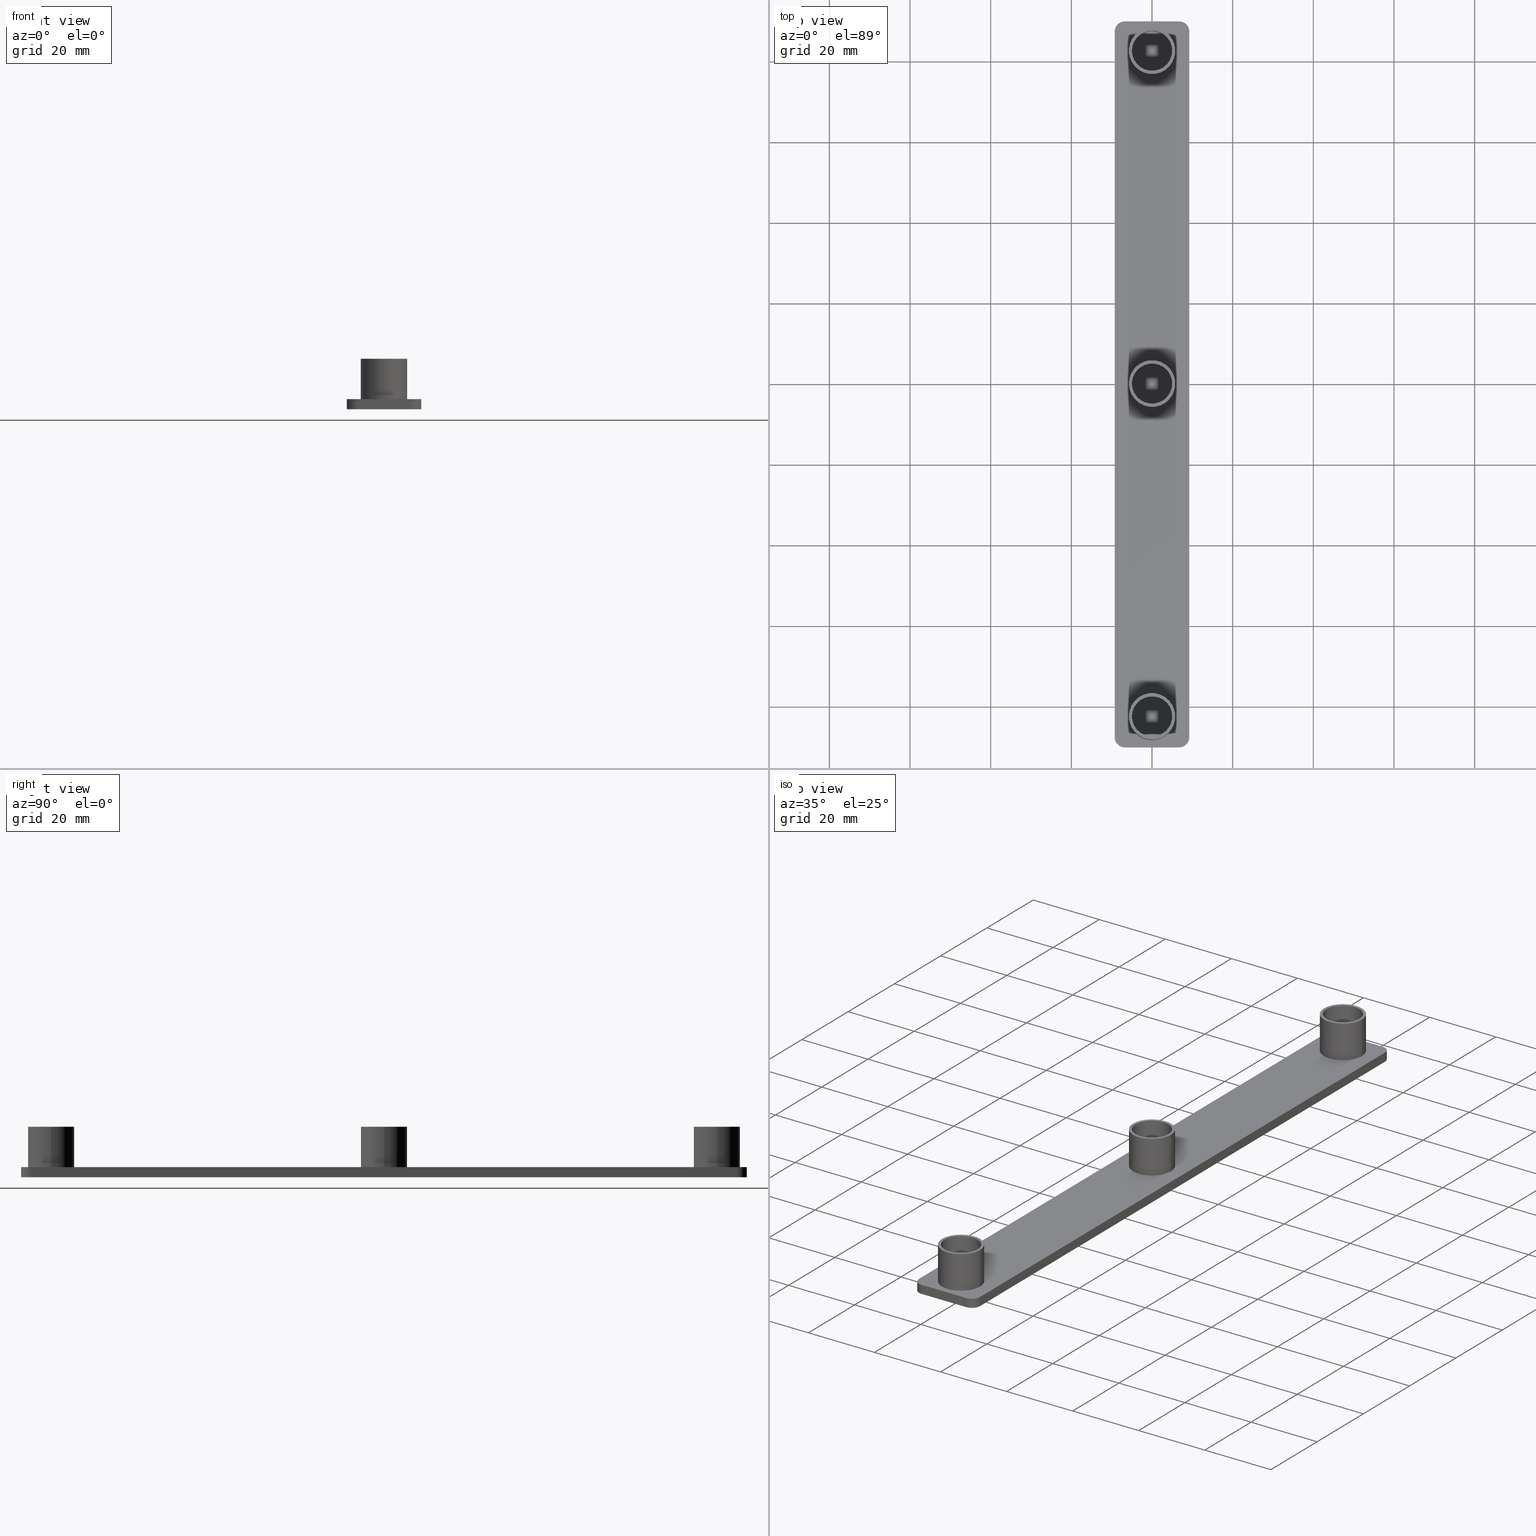
[diagram: canonical four-view strip — front | top / right | iso, engineering-drawing reading convention]
A machine part, canonical four-view strip (front | top / right | iso — engineering-drawing reading convention). The complete STEP part file that produces these views, byte-faithful:
ISO-10303-21;
HEADER;
/****************************************************************
 * Generated by software with PDE/Lib inside                    *
 * PDElib Version v4.4, created Mon 02/23/2004                  *
 * International Technegroup Inc. (www.iti-oh.com)              *
 ****************************************************************/
FILE_DESCRIPTION(('STEP AP203'),'2;1');
FILE_NAME('18.069.00.stp','2011-03-07T08:45:51',(''),(''),'2009.3.110','THINKDESIGN','');
FILE_SCHEMA(('CONFIG_CONTROL_DESIGN'));
ENDSEC;
DATA;
#2=CARTESIAN_POINT('',(9.249954999963393,-87.499977499649503,0.0));
#3=DIRECTION('',(-1.0,0.0,0.0));
#4=DIRECTION('',(0.0,1.0,0.0));
#5=AXIS2_PLACEMENT_3D('',#2,#3,#4);
#6=PLANE('',#5);
#7=CARTESIAN_POINT('',(9.249954999963393,-87.499977499649503,0.0));
#8=VERTEX_POINT('',#7);
#9=CARTESIAN_POINT('',(9.249954999963393,-87.499977499649503,-2.500000000000000));
#10=VERTEX_POINT('',#9);
#11=CARTESIAN_POINT('',(9.249954999963393,-87.499977499649503,0.0));
#12=DIRECTION('',(0.0,0.0,-1.0));
#13=VECTOR('',#12,2.500000000000000);
#14=LINE('',#11,#13);
#15=EDGE_CURVE('',#8,#10,#14,.T.);
#16=ORIENTED_EDGE('',*,*,#15,.T.);
#17=CARTESIAN_POINT('',(9.249954999962938,87.500022499650186,-2.500000000000000));
#18=VERTEX_POINT('',#17);
#19=CARTESIAN_POINT('',(9.249954999963393,-87.499977499649503,-2.500000000000000));
#20=DIRECTION('',(0.0,1.0,0.0));
#21=VECTOR('',#20,174.999999999300030);
#22=LINE('',#19,#21);
#23=EDGE_CURVE('',#10,#18,#22,.T.);
#24=ORIENTED_EDGE('',*,*,#23,.T.);
#25=CARTESIAN_POINT('',(9.249954999962938,87.500022499650186,0.0));
#26=VERTEX_POINT('',#25);
#27=CARTESIAN_POINT('',(9.249954999962938,87.500022499650186,0.0));
#28=DIRECTION('',(0.0,0.0,-1.0));
#29=VECTOR('',#28,2.500000000000000);
#30=LINE('',#27,#29);
#31=EDGE_CURVE('',#26,#18,#30,.T.);
#32=ORIENTED_EDGE('',*,*,#31,.F.);
#33=CARTESIAN_POINT('',(9.249954999963393,-87.499977499649503,0.0));
#34=DIRECTION('',(0.0,1.0,0.0));
#35=VECTOR('',#34,174.999999999300030);
#36=LINE('',#33,#35);
#37=EDGE_CURVE('',#8,#26,#36,.T.);
#38=ORIENTED_EDGE('',*,*,#37,.F.);
#39=EDGE_LOOP('',(#16,#24,#32,#38));
#40=FACE_OUTER_BOUND('',#39,.T.);
#41=ADVANCED_FACE('',(#40),#6,.F.);
#42=CARTESIAN_POINT('',(6.749954999972943,87.500022499650186,0.0));
#43=DIRECTION('',(0.0,0.0,1.0));
#44=DIRECTION('',(1.0,0.0,0.0));
#45=AXIS2_PLACEMENT_3D('',#42,#43,#44);
#46=CYLINDRICAL_SURFACE('',#45,2.499999999990000);
#47=ORIENTED_EDGE('',*,*,#31,.T.);
#48=CARTESIAN_POINT('',(6.749954999972943,90.000022499640181,-2.500000000000000));
#49=VERTEX_POINT('',#48);
#50=CARTESIAN_POINT('',(6.749954999972943,87.500022499650186,-2.500000000000000));
#51=DIRECTION('',(0.0,0.0,1.0));
#52=DIRECTION('',(1.0,0.0,0.0));
#53=AXIS2_PLACEMENT_3D('',#50,#51,#52);
#54=CIRCLE('',#53,2.499999999990000);
#55=EDGE_CURVE('',#18,#49,#54,.T.);
#56=ORIENTED_EDGE('',*,*,#55,.T.);
#57=CARTESIAN_POINT('',(6.749954999972943,90.000022499640181,0.0));
#58=VERTEX_POINT('',#57);
#59=CARTESIAN_POINT('',(6.749954999972943,90.000022499640181,0.0));
#60=DIRECTION('',(0.0,0.0,-1.0));
#61=VECTOR('',#60,2.500000000000000);
#62=LINE('',#59,#61);
#63=EDGE_CURVE('',#58,#49,#62,.T.);
#64=ORIENTED_EDGE('',*,*,#63,.F.);
#65=CARTESIAN_POINT('',(6.749954999972943,87.500022499650186,0.0));
#66=DIRECTION('',(0.0,0.0,1.0));
#67=DIRECTION('',(1.0,0.0,0.0));
#68=AXIS2_PLACEMENT_3D('',#65,#66,#67);
#69=CIRCLE('',#68,2.499999999990000);
#70=EDGE_CURVE('',#26,#58,#69,.T.);
#71=ORIENTED_EDGE('',*,*,#70,.F.);
#72=EDGE_LOOP('',(#47,#56,#64,#71));
#73=FACE_OUTER_BOUND('',#72,.T.);
#74=ADVANCED_FACE('',(#73),#46,.T.);
#75=CARTESIAN_POINT('',(6.749954999972943,90.000022499640181,0.0));
#76=DIRECTION('',(0.0,-1.0,0.0));
#77=DIRECTION('',(-1.0,0.0,0.0));
#78=AXIS2_PLACEMENT_3D('',#75,#76,#77);
#79=PLANE('',#78);
#80=ORIENTED_EDGE('',*,*,#63,.T.);
#81=CARTESIAN_POINT('',(-6.750044999972943,90.000022499640181,-2.500000000000000));
#82=VERTEX_POINT('',#81);
#83=CARTESIAN_POINT('',(6.749954999973063,90.000022499640252,-2.500000000000000));
#84=DIRECTION('',(-1.0,0.0,0.0));
#85=VECTOR('',#84,13.499999999946006);
#86=LINE('',#83,#85);
#87=EDGE_CURVE('',#49,#82,#86,.T.);
#88=ORIENTED_EDGE('',*,*,#87,.T.);
#89=CARTESIAN_POINT('',(-6.750044999972943,90.000022499640181,0.0));
#90=VERTEX_POINT('',#89);
#91=CARTESIAN_POINT('',(-6.750044999972943,90.000022499640181,0.0));
#92=DIRECTION('',(0.0,0.0,-1.0));
#93=VECTOR('',#92,2.500000000000000);
#94=LINE('',#91,#93);
#95=EDGE_CURVE('',#90,#82,#94,.T.);
#96=ORIENTED_EDGE('',*,*,#95,.F.);
#97=CARTESIAN_POINT('',(6.749954999973063,90.000022499640252,0.0));
#98=DIRECTION('',(-1.0,0.0,0.0));
#99=VECTOR('',#98,13.499999999946006);
#100=LINE('',#97,#99);
#101=EDGE_CURVE('',#58,#90,#100,.T.);
#102=ORIENTED_EDGE('',*,*,#101,.F.);
#103=EDGE_LOOP('',(#80,#88,#96,#102));
#104=FACE_OUTER_BOUND('',#103,.T.);
#105=ADVANCED_FACE('',(#104),#79,.F.);
#106=CARTESIAN_POINT('',(-6.750044999972943,87.500022499650186,0.0));
#107=DIRECTION('',(0.0,0.0,1.0));
#108=DIRECTION('',(1.0,0.0,0.0));
#109=AXIS2_PLACEMENT_3D('',#106,#107,#108);
#110=CYLINDRICAL_SURFACE('',#109,2.499999999990000);
#111=ORIENTED_EDGE('',*,*,#95,.T.);
#112=CARTESIAN_POINT('',(-9.250044999962938,87.500022499650186,-2.500000000000000));
#113=VERTEX_POINT('',#112);
#114=CARTESIAN_POINT('',(-6.750044999972943,87.500022499650186,-2.500000000000000));
#115=DIRECTION('',(0.0,0.0,1.0));
#116=DIRECTION('',(1.0,0.0,0.0));
#117=AXIS2_PLACEMENT_3D('',#114,#115,#116);
#118=CIRCLE('',#117,2.499999999990000);
#119=EDGE_CURVE('',#82,#113,#118,.T.);
#120=ORIENTED_EDGE('',*,*,#119,.T.);
#121=CARTESIAN_POINT('',(-9.250044999962938,87.500022499650186,0.0));
#122=VERTEX_POINT('',#121);
#123=CARTESIAN_POINT('',(-9.250044999962938,87.500022499650186,0.0));
#124=DIRECTION('',(0.0,0.0,-1.0));
#125=VECTOR('',#124,2.500000000000000);
#126=LINE('',#123,#125);
#127=EDGE_CURVE('',#122,#113,#126,.T.);
#128=ORIENTED_EDGE('',*,*,#127,.F.);
#129=CARTESIAN_POINT('',(-6.750044999972943,87.500022499650186,0.0));
#130=DIRECTION('',(0.0,0.0,1.0));
#131=DIRECTION('',(1.0,0.0,0.0));
#132=AXIS2_PLACEMENT_3D('',#129,#130,#131);
#133=CIRCLE('',#132,2.499999999990000);
#134=EDGE_CURVE('',#90,#122,#133,.T.);
#135=ORIENTED_EDGE('',*,*,#134,.F.);
#136=EDGE_LOOP('',(#111,#120,#128,#135));
#137=FACE_OUTER_BOUND('',#136,.T.);
#138=ADVANCED_FACE('',(#137),#110,.T.);
#139=CARTESIAN_POINT('',(-9.250044999962938,87.500022499650186,0.0));
#140=DIRECTION('',(1.0,0.0,0.0));
#141=DIRECTION('',(0.0,-1.0,0.0));
#142=AXIS2_PLACEMENT_3D('',#139,#140,#141);
#143=PLANE('',#142);
#144=ORIENTED_EDGE('',*,*,#127,.T.);
#145=CARTESIAN_POINT('',(-9.250044999962938,-87.499977499649503,-2.500000000000000));
#146=VERTEX_POINT('',#145);
#147=CARTESIAN_POINT('',(-9.250044999962938,87.500022499650186,-2.500000000000000));
#148=DIRECTION('',(0.0,-1.0,0.0));
#149=VECTOR('',#148,174.999999999300000);
#150=LINE('',#147,#149);
#151=EDGE_CURVE('',#113,#146,#150,.T.);
#152=ORIENTED_EDGE('',*,*,#151,.T.);
#153=CARTESIAN_POINT('',(-9.250044999962938,-87.499977499649503,0.0));
#154=VERTEX_POINT('',#153);
#155=CARTESIAN_POINT('',(-9.250044999962938,-87.499977499649503,0.0));
#156=DIRECTION('',(0.0,0.0,-1.0));
#157=VECTOR('',#156,2.500000000000000);
#158=LINE('',#155,#157);
#159=EDGE_CURVE('',#154,#146,#158,.T.);
#160=ORIENTED_EDGE('',*,*,#159,.F.);
#161=CARTESIAN_POINT('',(-9.250044999962938,87.500022499650186,0.0));
#162=DIRECTION('',(0.0,-1.0,0.0));
#163=VECTOR('',#162,174.999999999300000);
#164=LINE('',#161,#163);
#165=EDGE_CURVE('',#122,#154,#164,.T.);
#166=ORIENTED_EDGE('',*,*,#165,.F.);
#167=EDGE_LOOP('',(#144,#152,#160,#166));
#168=FACE_OUTER_BOUND('',#167,.T.);
#169=ADVANCED_FACE('',(#168),#143,.F.);
#170=CARTESIAN_POINT('',(-6.750044999972943,-87.499977499649503,0.0));
#171=DIRECTION('',(0.0,0.0,1.0));
#172=DIRECTION('',(1.0,0.0,0.0));
#173=AXIS2_PLACEMENT_3D('',#170,#171,#172);
#174=CYLINDRICAL_SURFACE('',#173,2.499999999990000);
#175=ORIENTED_EDGE('',*,*,#159,.T.);
#176=CARTESIAN_POINT('',(-6.750044999972943,-89.999977499639499,-2.500000000000000));
#177=VERTEX_POINT('',#176);
#178=CARTESIAN_POINT('',(-6.750044999972943,-87.499977499649503,-2.500000000000000));
#179=DIRECTION('',(0.0,0.0,1.0));
#180=DIRECTION('',(1.0,0.0,0.0));
#181=AXIS2_PLACEMENT_3D('',#178,#179,#180);
#182=CIRCLE('',#181,2.499999999990000);
#183=EDGE_CURVE('',#146,#177,#182,.T.);
#184=ORIENTED_EDGE('',*,*,#183,.T.);
#185=CARTESIAN_POINT('',(-6.750044999972943,-89.999977499639499,0.0));
#186=VERTEX_POINT('',#185);
#187=CARTESIAN_POINT('',(-6.750044999972943,-89.999977499639499,0.0));
#188=DIRECTION('',(0.0,0.0,-1.0));
#189=VECTOR('',#188,2.500000000000000);
#190=LINE('',#187,#189);
#191=EDGE_CURVE('',#186,#177,#190,.T.);
#192=ORIENTED_EDGE('',*,*,#191,.F.);
#193=CARTESIAN_POINT('',(-6.750044999972943,-87.499977499649503,0.0));
#194=DIRECTION('',(0.0,0.0,1.0));
#195=DIRECTION('',(1.0,0.0,0.0));
#196=AXIS2_PLACEMENT_3D('',#193,#194,#195);
#197=CIRCLE('',#196,2.499999999990000);
#198=EDGE_CURVE('',#154,#186,#197,.T.);
#199=ORIENTED_EDGE('',*,*,#198,.F.);
#200=EDGE_LOOP('',(#175,#184,#192,#199));
#201=FACE_OUTER_BOUND('',#200,.T.);
#202=ADVANCED_FACE('',(#201),#174,.T.);
#203=CARTESIAN_POINT('',(-6.750044999972943,-89.999977499639499,0.0));
#204=DIRECTION('',(0.0,1.0,0.0));
#205=DIRECTION('',(1.0,0.0,0.0));
#206=AXIS2_PLACEMENT_3D('',#203,#204,#205);
#207=PLANE('',#206);
#208=ORIENTED_EDGE('',*,*,#191,.T.);
#209=CARTESIAN_POINT('',(6.749954999973397,-89.999977499639499,-2.500000000000000));
#210=VERTEX_POINT('',#209);
#211=CARTESIAN_POINT('',(-6.750044999972943,-89.999977499639499,-2.500000000000000));
#212=DIRECTION('',(1.0,0.0,0.0));
#213=VECTOR('',#212,13.499999999946006);
#214=LINE('',#211,#213);
#215=EDGE_CURVE('',#177,#210,#214,.T.);
#216=ORIENTED_EDGE('',*,*,#215,.T.);
#217=CARTESIAN_POINT('',(6.749954999973397,-89.999977499639499,0.0));
#218=VERTEX_POINT('',#217);
#219=CARTESIAN_POINT('',(6.749954999973397,-89.999977499639499,0.0));
#220=DIRECTION('',(0.0,0.0,-1.0));
#221=VECTOR('',#220,2.500000000000000);
#222=LINE('',#219,#221);
#223=EDGE_CURVE('',#218,#210,#222,.T.);
#224=ORIENTED_EDGE('',*,*,#223,.F.);
#225=CARTESIAN_POINT('',(-6.750044999972943,-89.999977499639499,0.0));
#226=DIRECTION('',(1.0,0.0,0.0));
#227=VECTOR('',#226,13.499999999946006);
#228=LINE('',#225,#227);
#229=EDGE_CURVE('',#186,#218,#228,.T.);
#230=ORIENTED_EDGE('',*,*,#229,.F.);
#231=EDGE_LOOP('',(#208,#216,#224,#230));
#232=FACE_OUTER_BOUND('',#231,.T.);
#233=ADVANCED_FACE('',(#232),#207,.F.);
#234=CARTESIAN_POINT('',(6.749954999973397,-87.499977499649503,0.0));
#235=DIRECTION('',(0.0,0.0,1.0));
#236=DIRECTION('',(5.053215E-016,-1.0,0.0));
#237=AXIS2_PLACEMENT_3D('',#234,#235,#236);
#238=CYLINDRICAL_SURFACE('',#237,2.499999999990000);
#239=ORIENTED_EDGE('',*,*,#223,.T.);
#240=CARTESIAN_POINT('',(6.749954999973397,-87.499977499649503,-2.500000000000000));
#241=DIRECTION('',(0.0,0.0,1.0));
#242=DIRECTION('',(1.0,0.0,0.0));
#243=AXIS2_PLACEMENT_3D('',#240,#241,#242);
#244=CIRCLE('',#243,2.499999999990000);
#245=EDGE_CURVE('',#210,#10,#244,.T.);
#246=ORIENTED_EDGE('',*,*,#245,.T.);
#247=ORIENTED_EDGE('',*,*,#15,.F.);
#248=CARTESIAN_POINT('',(6.749954999973397,-87.499977499649503,0.0));
#249=DIRECTION('',(0.0,0.0,1.0));
#250=DIRECTION('',(1.0,0.0,0.0));
#251=AXIS2_PLACEMENT_3D('',#248,#249,#250);
#252=CIRCLE('',#251,2.499999999990000);
#253=EDGE_CURVE('',#218,#8,#252,.T.);
#254=ORIENTED_EDGE('',*,*,#253,.F.);
#255=EDGE_LOOP('',(#239,#246,#247,#254));
#256=FACE_OUTER_BOUND('',#255,.T.);
#257=ADVANCED_FACE('',(#256),#238,.T.);
#258=CARTESIAN_POINT('',(-11.100049735977336,-107.999982235150130,0.0));
#259=DIRECTION('',(0.0,0.0,1.0));
#260=DIRECTION('',(1.0,0.0,0.0));
#261=AXIS2_PLACEMENT_3D('',#258,#259,#260);
#262=PLANE('',#261);
#263=ORIENTED_EDGE('',*,*,#37,.T.);
#264=ORIENTED_EDGE('',*,*,#70,.T.);
#265=ORIENTED_EDGE('',*,*,#101,.T.);
#266=ORIENTED_EDGE('',*,*,#134,.T.);
#267=ORIENTED_EDGE('',*,*,#165,.T.);
#268=ORIENTED_EDGE('',*,*,#198,.T.);
#269=ORIENTED_EDGE('',*,*,#229,.T.);
#270=ORIENTED_EDGE('',*,*,#253,.T.);
#271=EDGE_LOOP('',(#263,#264,#265,#266,#267,#268,#269,#270));
#272=FACE_OUTER_BOUND('',#271,.T.);
#273=CARTESIAN_POINT('',(-5.749999999977001,-82.550022499669467,0.0));
#274=VERTEX_POINT('',#273);
#275=CARTESIAN_POINT('',(5.749999999976808,-82.550022499669467,0.0));
#276=VERTEX_POINT('',#275);
#277=CARTESIAN_POINT('',(0.0,-82.550022499669467,0.0));
#278=DIRECTION('',(0.0,0.0,1.0));
#279=DIRECTION('',(1.0,0.0,0.0));
#280=AXIS2_PLACEMENT_3D('',#277,#278,#279);
#281=CIRCLE('',#280,5.749999999977001);
#282=EDGE_CURVE('',#274,#276,#281,.T.);
#283=ORIENTED_EDGE('',*,*,#282,.F.);
#284=CARTESIAN_POINT('',(0.0,-82.550022499669467,0.0));
#285=DIRECTION('',(0.0,0.0,1.0));
#286=DIRECTION('',(1.0,0.0,0.0));
#287=AXIS2_PLACEMENT_3D('',#284,#285,#286);
#288=CIRCLE('',#287,5.749999999977001);
#289=EDGE_CURVE('',#276,#274,#288,.T.);
#290=ORIENTED_EDGE('',*,*,#289,.F.);
#291=EDGE_LOOP('',(#283,#290));
#292=FACE_BOUND('',#291,.T.);
#293=CARTESIAN_POINT('',(-5.749999999977001,0.0,0.0));
#294=VERTEX_POINT('',#293);
#295=CARTESIAN_POINT('',(5.749999999976808,0.0,0.0));
#296=VERTEX_POINT('',#295);
#297=CARTESIAN_POINT('',(0.0,0.0,0.0));
#298=DIRECTION('',(0.0,0.0,1.0));
#299=DIRECTION('',(1.0,0.0,0.0));
#300=AXIS2_PLACEMENT_3D('',#297,#298,#299);
#301=CIRCLE('',#300,5.749999999977001);
#302=EDGE_CURVE('',#294,#296,#301,.T.);
#303=ORIENTED_EDGE('',*,*,#302,.F.);
#304=CARTESIAN_POINT('',(0.0,0.0,0.0));
#305=DIRECTION('',(0.0,0.0,1.0));
#306=DIRECTION('',(1.0,0.0,0.0));
#307=AXIS2_PLACEMENT_3D('',#304,#305,#306);
#308=CIRCLE('',#307,5.749999999977001);
#309=EDGE_CURVE('',#296,#294,#308,.T.);
#310=ORIENTED_EDGE('',*,*,#309,.F.);
#311=EDGE_LOOP('',(#303,#310));
#312=FACE_BOUND('',#311,.T.);
#313=CARTESIAN_POINT('',(-5.749999999977001,82.550022499670376,0.0));
#314=VERTEX_POINT('',#313);
#315=CARTESIAN_POINT('',(5.749999999976808,82.550022499670376,0.0));
#316=VERTEX_POINT('',#315);
#317=CARTESIAN_POINT('',(0.0,82.550022499670376,0.0));
#318=DIRECTION('',(0.0,0.0,1.0));
#319=DIRECTION('',(1.0,0.0,0.0));
#320=AXIS2_PLACEMENT_3D('',#317,#318,#319);
#321=CIRCLE('',#320,5.749999999977001);
#322=EDGE_CURVE('',#314,#316,#321,.T.);
#323=ORIENTED_EDGE('',*,*,#322,.F.);
#324=CARTESIAN_POINT('',(0.0,82.550022499670376,0.0));
#325=DIRECTION('',(0.0,0.0,1.0));
#326=DIRECTION('',(1.0,0.0,0.0));
#327=AXIS2_PLACEMENT_3D('',#324,#325,#326);
#328=CIRCLE('',#327,5.749999999977001);
#329=EDGE_CURVE('',#316,#314,#328,.T.);
#330=ORIENTED_EDGE('',*,*,#329,.F.);
#331=EDGE_LOOP('',(#323,#330));
#332=FACE_BOUND('',#331,.T.);
#333=ADVANCED_FACE('',(#272,#292,#312,#332),#262,.T.);
#334=CARTESIAN_POINT('',(-11.100049735977336,-107.999982235150130,0.0));
#335=DIRECTION('',(0.0,0.0,1.0));
#336=DIRECTION('',(1.0,0.0,0.0));
#337=AXIS2_PLACEMENT_3D('',#334,#335,#336);
#338=PLANE('',#337);
#339=CARTESIAN_POINT('',(-4.999999999980001,-82.550022499669467,0.0));
#340=VERTEX_POINT('',#339);
#341=CARTESIAN_POINT('',(4.999999999979991,-82.550022499669467,0.0));
#342=VERTEX_POINT('',#341);
#343=CARTESIAN_POINT('',(0.0,-82.550022499669467,0.0));
#344=DIRECTION('',(0.0,0.0,-1.0));
#345=DIRECTION('',(1.0,0.0,0.0));
#346=AXIS2_PLACEMENT_3D('',#343,#344,#345);
#347=CIRCLE('',#346,4.999999999980001);
#348=EDGE_CURVE('',#340,#342,#347,.T.);
#349=ORIENTED_EDGE('',*,*,#348,.F.);
#350=CARTESIAN_POINT('',(0.0,-82.550022499669467,0.0));
#351=DIRECTION('',(0.0,0.0,-1.0));
#352=DIRECTION('',(1.0,0.0,0.0));
#353=AXIS2_PLACEMENT_3D('',#350,#351,#352);
#354=CIRCLE('',#353,4.999999999980001);
#355=EDGE_CURVE('',#342,#340,#354,.T.);
#356=ORIENTED_EDGE('',*,*,#355,.F.);
#357=EDGE_LOOP('',(#349,#356));
#358=FACE_OUTER_BOUND('',#357,.T.);
#359=ADVANCED_FACE('',(#358),#338,.T.);
#360=CARTESIAN_POINT('',(-11.100049735977336,-107.999982235150130,0.0));
#361=DIRECTION('',(0.0,0.0,1.0));
#362=DIRECTION('',(1.0,0.0,0.0));
#363=AXIS2_PLACEMENT_3D('',#360,#361,#362);
#364=PLANE('',#363);
#365=CARTESIAN_POINT('',(-4.999999999980001,0.0,0.0));
#366=VERTEX_POINT('',#365);
#367=CARTESIAN_POINT('',(4.999999999979991,0.0,0.0));
#368=VERTEX_POINT('',#367);
#369=CARTESIAN_POINT('',(0.0,0.0,0.0));
#370=DIRECTION('',(0.0,0.0,-1.0));
#371=DIRECTION('',(1.0,0.0,0.0));
#372=AXIS2_PLACEMENT_3D('',#369,#370,#371);
#373=CIRCLE('',#372,4.999999999980001);
#374=EDGE_CURVE('',#366,#368,#373,.T.);
#375=ORIENTED_EDGE('',*,*,#374,.F.);
#376=CARTESIAN_POINT('',(0.0,0.0,0.0));
#377=DIRECTION('',(0.0,0.0,-1.0));
#378=DIRECTION('',(1.0,0.0,0.0));
#379=AXIS2_PLACEMENT_3D('',#376,#377,#378);
#380=CIRCLE('',#379,4.999999999980001);
#381=EDGE_CURVE('',#368,#366,#380,.T.);
#382=ORIENTED_EDGE('',*,*,#381,.F.);
#383=EDGE_LOOP('',(#375,#382));
#384=FACE_OUTER_BOUND('',#383,.T.);
#385=ADVANCED_FACE('',(#384),#364,.T.);
#386=CARTESIAN_POINT('',(-11.100049735977336,-107.999982235150130,0.0));
#387=DIRECTION('',(0.0,0.0,1.0));
#388=DIRECTION('',(1.0,0.0,0.0));
#389=AXIS2_PLACEMENT_3D('',#386,#387,#388);
#390=PLANE('',#389);
#391=CARTESIAN_POINT('',(-4.999999999980001,82.550022499670376,0.0));
#392=VERTEX_POINT('',#391);
#393=CARTESIAN_POINT('',(4.999999999979991,82.550022499670376,0.0));
#394=VERTEX_POINT('',#393);
#395=CARTESIAN_POINT('',(0.0,82.550022499670376,0.0));
#396=DIRECTION('',(0.0,0.0,-1.0));
#397=DIRECTION('',(1.0,0.0,0.0));
#398=AXIS2_PLACEMENT_3D('',#395,#396,#397);
#399=CIRCLE('',#398,4.999999999980001);
#400=EDGE_CURVE('',#392,#394,#399,.T.);
#401=ORIENTED_EDGE('',*,*,#400,.F.);
#402=CARTESIAN_POINT('',(0.0,82.550022499670376,0.0));
#403=DIRECTION('',(0.0,0.0,-1.0));
#404=DIRECTION('',(1.0,0.0,0.0));
#405=AXIS2_PLACEMENT_3D('',#402,#403,#404);
#406=CIRCLE('',#405,4.999999999980001);
#407=EDGE_CURVE('',#394,#392,#406,.T.);
#408=ORIENTED_EDGE('',*,*,#407,.F.);
#409=EDGE_LOOP('',(#401,#408));
#410=FACE_OUTER_BOUND('',#409,.T.);
#411=ADVANCED_FACE('',(#410),#390,.T.);
#412=CARTESIAN_POINT('',(-11.100049735977336,-107.999982235150130,-2.500000000000000));
#413=DIRECTION('',(0.0,0.0,1.0));
#414=DIRECTION('',(1.0,0.0,0.0));
#415=AXIS2_PLACEMENT_3D('',#412,#413,#414);
#416=PLANE('',#415);
#417=ORIENTED_EDGE('',*,*,#245,.F.);
#418=ORIENTED_EDGE('',*,*,#215,.F.);
#419=ORIENTED_EDGE('',*,*,#183,.F.);
#420=ORIENTED_EDGE('',*,*,#151,.F.);
#421=ORIENTED_EDGE('',*,*,#119,.F.);
#422=ORIENTED_EDGE('',*,*,#87,.F.);
#423=ORIENTED_EDGE('',*,*,#55,.F.);
#424=ORIENTED_EDGE('',*,*,#23,.F.);
#425=EDGE_LOOP('',(#417,#418,#419,#420,#421,#422,#423,#424));
#426=FACE_OUTER_BOUND('',#425,.T.);
#427=ADVANCED_FACE('',(#426),#416,.F.);
#428=CARTESIAN_POINT('',(0.0,-82.550022499669467,0.0));
#429=DIRECTION('',(0.0,0.0,1.0));
#430=DIRECTION('',(1.0,0.0,0.0));
#431=AXIS2_PLACEMENT_3D('',#428,#429,#430);
#432=CYLINDRICAL_SURFACE('',#431,5.749999999977001);
#433=CARTESIAN_POINT('',(-5.749999999977001,-82.550022499669467,10.0));
#434=VERTEX_POINT('',#433);
#435=CARTESIAN_POINT('',(5.749999999976808,-82.550022499669467,10.0));
#436=VERTEX_POINT('',#435);
#437=CARTESIAN_POINT('',(0.0,-82.550022499669467,10.0));
#438=DIRECTION('',(0.0,0.0,1.0));
#439=DIRECTION('',(1.0,0.0,0.0));
#440=AXIS2_PLACEMENT_3D('',#437,#438,#439);
#441=CIRCLE('',#440,5.749999999977001);
#442=EDGE_CURVE('',#434,#436,#441,.T.);
#443=ORIENTED_EDGE('',*,*,#442,.F.);
#444=CARTESIAN_POINT('',(0.0,-82.550022499669467,10.0));
#445=DIRECTION('',(0.0,0.0,1.0));
#446=DIRECTION('',(1.0,0.0,0.0));
#447=AXIS2_PLACEMENT_3D('',#444,#445,#446);
#448=CIRCLE('',#447,5.749999999977001);
#449=EDGE_CURVE('',#436,#434,#448,.T.);
#450=ORIENTED_EDGE('',*,*,#449,.F.);
#451=CARTESIAN_POINT('',(5.749999999976808,-82.550022499669467,0.0));
#452=DIRECTION('',(0.0,0.0,1.0));
#453=VECTOR('',#452,10.0);
#454=LINE('',#451,#453);
#455=EDGE_CURVE('',#276,#436,#454,.T.);
#456=ORIENTED_EDGE('',*,*,#455,.F.);
#457=ORIENTED_EDGE('',*,*,#289,.T.);
#458=ORIENTED_EDGE('',*,*,#282,.T.);
#459=ORIENTED_EDGE('',*,*,#455,.T.);
#460=EDGE_LOOP('',(#443,#450,#456,#457,#458,#459));
#461=FACE_OUTER_BOUND('',#460,.T.);
#462=ADVANCED_FACE('',(#461),#432,.T.);
#463=CARTESIAN_POINT('',(0.0,-82.550022499669467,0.0));
#464=DIRECTION('',(0.0,0.0,-1.0));
#465=DIRECTION('',(1.0,-2.449294E-016,0.0));
#466=AXIS2_PLACEMENT_3D('',#463,#464,#465);
#467=CYLINDRICAL_SURFACE('',#466,4.999999999980001);
#468=CARTESIAN_POINT('',(-4.999999999980001,-82.550022499669467,10.0));
#469=VERTEX_POINT('',#468);
#470=CARTESIAN_POINT('',(4.999999999979991,-82.550022499669467,10.0));
#471=VERTEX_POINT('',#470);
#472=CARTESIAN_POINT('',(0.0,-82.550022499669467,10.0));
#473=DIRECTION('',(0.0,0.0,-1.0));
#474=DIRECTION('',(1.0,0.0,0.0));
#475=AXIS2_PLACEMENT_3D('',#472,#473,#474);
#476=CIRCLE('',#475,4.999999999980001);
#477=EDGE_CURVE('',#469,#471,#476,.T.);
#478=ORIENTED_EDGE('',*,*,#477,.F.);
#479=CARTESIAN_POINT('',(0.0,-82.550022499669467,10.0));
#480=DIRECTION('',(0.0,0.0,-1.0));
#481=DIRECTION('',(1.0,0.0,0.0));
#482=AXIS2_PLACEMENT_3D('',#479,#480,#481);
#483=CIRCLE('',#482,4.999999999980001);
#484=EDGE_CURVE('',#471,#469,#483,.T.);
#485=ORIENTED_EDGE('',*,*,#484,.F.);
#486=CARTESIAN_POINT('',(4.999999999979991,-82.550022499669467,0.0));
#487=DIRECTION('',(0.0,0.0,1.0));
#488=VECTOR('',#487,10.0);
#489=LINE('',#486,#488);
#490=EDGE_CURVE('',#342,#471,#489,.T.);
#491=ORIENTED_EDGE('',*,*,#490,.F.);
#492=ORIENTED_EDGE('',*,*,#355,.T.);
#493=ORIENTED_EDGE('',*,*,#348,.T.);
#494=ORIENTED_EDGE('',*,*,#490,.T.);
#495=EDGE_LOOP('',(#478,#485,#491,#492,#493,#494));
#496=FACE_OUTER_BOUND('',#495,.T.);
#497=ADVANCED_FACE('',(#496),#467,.F.);
#498=CARTESIAN_POINT('',(-6.900004735549828,-89.450027235191556,10.0));
#499=DIRECTION('',(0.0,0.0,1.0));
#500=DIRECTION('',(1.0,0.0,0.0));
#501=AXIS2_PLACEMENT_3D('',#498,#499,#500);
#502=PLANE('',#501);
#503=ORIENTED_EDGE('',*,*,#449,.T.);
#504=ORIENTED_EDGE('',*,*,#442,.T.);
#505=EDGE_LOOP('',(#503,#504));
#506=FACE_OUTER_BOUND('',#505,.T.);
#507=ORIENTED_EDGE('',*,*,#484,.T.);
#508=ORIENTED_EDGE('',*,*,#477,.T.);
#509=EDGE_LOOP('',(#507,#508));
#510=FACE_BOUND('',#509,.T.);
#511=ADVANCED_FACE('',(#506,#510),#502,.T.);
#512=CARTESIAN_POINT('',(0.0,0.0,0.0));
#513=DIRECTION('',(0.0,0.0,1.0));
#514=DIRECTION('',(1.0,0.0,0.0));
#515=AXIS2_PLACEMENT_3D('',#512,#513,#514);
#516=CYLINDRICAL_SURFACE('',#515,5.749999999977001);
#517=CARTESIAN_POINT('',(-5.749999999977001,0.0,10.0));
#518=VERTEX_POINT('',#517);
#519=CARTESIAN_POINT('',(5.749999999976808,0.0,10.0));
#520=VERTEX_POINT('',#519);
#521=CARTESIAN_POINT('',(0.0,0.0,10.0));
#522=DIRECTION('',(0.0,0.0,1.0));
#523=DIRECTION('',(1.0,0.0,0.0));
#524=AXIS2_PLACEMENT_3D('',#521,#522,#523);
#525=CIRCLE('',#524,5.749999999977001);
#526=EDGE_CURVE('',#518,#520,#525,.T.);
#527=ORIENTED_EDGE('',*,*,#526,.F.);
#528=CARTESIAN_POINT('',(0.0,0.0,10.0));
#529=DIRECTION('',(0.0,0.0,1.0));
#530=DIRECTION('',(1.0,0.0,0.0));
#531=AXIS2_PLACEMENT_3D('',#528,#529,#530);
#532=CIRCLE('',#531,5.749999999977001);
#533=EDGE_CURVE('',#520,#518,#532,.T.);
#534=ORIENTED_EDGE('',*,*,#533,.F.);
#535=CARTESIAN_POINT('',(5.749999999976808,0.0,0.0));
#536=DIRECTION('',(0.0,0.0,1.0));
#537=VECTOR('',#536,10.0);
#538=LINE('',#535,#537);
#539=EDGE_CURVE('',#296,#520,#538,.T.);
#540=ORIENTED_EDGE('',*,*,#539,.F.);
#541=ORIENTED_EDGE('',*,*,#309,.T.);
#542=ORIENTED_EDGE('',*,*,#302,.T.);
#543=ORIENTED_EDGE('',*,*,#539,.T.);
#544=EDGE_LOOP('',(#527,#534,#540,#541,#542,#543));
#545=FACE_OUTER_BOUND('',#544,.T.);
#546=ADVANCED_FACE('',(#545),#516,.T.);
#547=CARTESIAN_POINT('',(0.0,0.0,0.0));
#548=DIRECTION('',(0.0,0.0,-1.0));
#549=DIRECTION('',(1.0,-2.449294E-016,0.0));
#550=AXIS2_PLACEMENT_3D('',#547,#548,#549);
#551=CYLINDRICAL_SURFACE('',#550,4.999999999980001);
#552=CARTESIAN_POINT('',(-4.999999999980001,0.0,10.0));
#553=VERTEX_POINT('',#552);
#554=CARTESIAN_POINT('',(4.999999999979991,0.0,10.0));
#555=VERTEX_POINT('',#554);
#556=CARTESIAN_POINT('',(0.0,0.0,10.0));
#557=DIRECTION('',(0.0,0.0,-1.0));
#558=DIRECTION('',(1.0,0.0,0.0));
#559=AXIS2_PLACEMENT_3D('',#556,#557,#558);
#560=CIRCLE('',#559,4.999999999980001);
#561=EDGE_CURVE('',#553,#555,#560,.T.);
#562=ORIENTED_EDGE('',*,*,#561,.F.);
#563=CARTESIAN_POINT('',(0.0,0.0,10.0));
#564=DIRECTION('',(0.0,0.0,-1.0));
#565=DIRECTION('',(1.0,0.0,0.0));
#566=AXIS2_PLACEMENT_3D('',#563,#564,#565);
#567=CIRCLE('',#566,4.999999999980001);
#568=EDGE_CURVE('',#555,#553,#567,.T.);
#569=ORIENTED_EDGE('',*,*,#568,.F.);
#570=CARTESIAN_POINT('',(4.999999999979991,0.0,0.0));
#571=DIRECTION('',(0.0,0.0,1.0));
#572=VECTOR('',#571,10.0);
#573=LINE('',#570,#572);
#574=EDGE_CURVE('',#368,#555,#573,.T.);
#575=ORIENTED_EDGE('',*,*,#574,.F.);
#576=ORIENTED_EDGE('',*,*,#381,.T.);
#577=ORIENTED_EDGE('',*,*,#374,.T.);
#578=ORIENTED_EDGE('',*,*,#574,.T.);
#579=EDGE_LOOP('',(#562,#569,#575,#576,#577,#578));
#580=FACE_OUTER_BOUND('',#579,.T.);
#581=ADVANCED_FACE('',(#580),#551,.F.);
#582=CARTESIAN_POINT('',(-6.900004735769926,-6.900004735742186,10.0));
#583=DIRECTION('',(0.0,0.0,1.0));
#584=DIRECTION('',(1.0,0.0,0.0));
#585=AXIS2_PLACEMENT_3D('',#582,#583,#584);
#586=PLANE('',#585);
#587=ORIENTED_EDGE('',*,*,#533,.T.);
#588=ORIENTED_EDGE('',*,*,#526,.T.);
#589=EDGE_LOOP('',(#587,#588));
#590=FACE_OUTER_BOUND('',#589,.T.);
#591=ORIENTED_EDGE('',*,*,#568,.T.);
#592=ORIENTED_EDGE('',*,*,#561,.T.);
#593=EDGE_LOOP('',(#591,#592));
#594=FACE_BOUND('',#593,.T.);
#595=ADVANCED_FACE('',(#590,#594),#586,.T.);
#596=CARTESIAN_POINT('',(0.0,82.550022499670376,0.0));
#597=DIRECTION('',(0.0,0.0,1.0));
#598=DIRECTION('',(1.0,0.0,0.0));
#599=AXIS2_PLACEMENT_3D('',#596,#597,#598);
#600=CYLINDRICAL_SURFACE('',#599,5.749999999977001);
#601=CARTESIAN_POINT('',(-5.749999999977001,82.550022499670376,10.0));
#602=VERTEX_POINT('',#601);
#603=CARTESIAN_POINT('',(5.749999999976808,82.550022499670376,10.0));
#604=VERTEX_POINT('',#603);
#605=CARTESIAN_POINT('',(0.0,82.550022499670376,10.0));
#606=DIRECTION('',(0.0,0.0,1.0));
#607=DIRECTION('',(1.0,0.0,0.0));
#608=AXIS2_PLACEMENT_3D('',#605,#606,#607);
#609=CIRCLE('',#608,5.749999999977001);
#610=EDGE_CURVE('',#602,#604,#609,.T.);
#611=ORIENTED_EDGE('',*,*,#610,.F.);
#612=CARTESIAN_POINT('',(0.0,82.550022499670376,10.0));
#613=DIRECTION('',(0.0,0.0,1.0));
#614=DIRECTION('',(1.0,0.0,0.0));
#615=AXIS2_PLACEMENT_3D('',#612,#613,#614);
#616=CIRCLE('',#615,5.749999999977001);
#617=EDGE_CURVE('',#604,#602,#616,.T.);
#618=ORIENTED_EDGE('',*,*,#617,.F.);
#619=CARTESIAN_POINT('',(5.749999999976808,82.550022499670376,0.0));
#620=DIRECTION('',(0.0,0.0,1.0));
#621=VECTOR('',#620,10.0);
#622=LINE('',#619,#621);
#623=EDGE_CURVE('',#316,#604,#622,.T.);
#624=ORIENTED_EDGE('',*,*,#623,.F.);
#625=ORIENTED_EDGE('',*,*,#329,.T.);
#626=ORIENTED_EDGE('',*,*,#322,.T.);
#627=ORIENTED_EDGE('',*,*,#623,.T.);
#628=EDGE_LOOP('',(#611,#618,#624,#625,#626,#627));
#629=FACE_OUTER_BOUND('',#628,.T.);
#630=ADVANCED_FACE('',(#629),#600,.T.);
#631=CARTESIAN_POINT('',(0.0,82.550022499670376,0.0));
#632=DIRECTION('',(0.0,0.0,-1.0));
#633=DIRECTION('',(1.0,-2.449294E-016,0.0));
#634=AXIS2_PLACEMENT_3D('',#631,#632,#633);
#635=CYLINDRICAL_SURFACE('',#634,4.999999999980001);
#636=CARTESIAN_POINT('',(-4.999999999980001,82.550022499670376,10.0));
#637=VERTEX_POINT('',#636);
#638=CARTESIAN_POINT('',(4.999999999979991,82.550022499670376,10.0));
#639=VERTEX_POINT('',#638);
#640=CARTESIAN_POINT('',(0.0,82.550022499670376,10.0));
#641=DIRECTION('',(0.0,0.0,-1.0));
#642=DIRECTION('',(1.0,0.0,0.0));
#643=AXIS2_PLACEMENT_3D('',#640,#641,#642);
#644=CIRCLE('',#643,4.999999999980001);
#645=EDGE_CURVE('',#637,#639,#644,.T.);
#646=ORIENTED_EDGE('',*,*,#645,.F.);
#647=CARTESIAN_POINT('',(0.0,82.550022499670376,10.0));
#648=DIRECTION('',(0.0,0.0,-1.0));
#649=DIRECTION('',(1.0,0.0,0.0));
#650=AXIS2_PLACEMENT_3D('',#647,#648,#649);
#651=CIRCLE('',#650,4.999999999980001);
#652=EDGE_CURVE('',#639,#637,#651,.T.);
#653=ORIENTED_EDGE('',*,*,#652,.F.);
#654=CARTESIAN_POINT('',(4.999999999979991,82.550022499670376,0.0));
#655=DIRECTION('',(0.0,0.0,1.0));
#656=VECTOR('',#655,10.0);
#657=LINE('',#654,#656);
#658=EDGE_CURVE('',#394,#639,#657,.T.);
#659=ORIENTED_EDGE('',*,*,#658,.F.);
#660=ORIENTED_EDGE('',*,*,#407,.T.);
#661=ORIENTED_EDGE('',*,*,#400,.T.);
#662=ORIENTED_EDGE('',*,*,#658,.T.);
#663=EDGE_LOOP('',(#646,#653,#659,#660,#661,#662));
#664=FACE_OUTER_BOUND('',#663,.T.);
#665=ADVANCED_FACE('',(#664),#635,.F.);
#666=CARTESIAN_POINT('',(-6.900004735989569,75.650017763708092,10.0));
#667=DIRECTION('',(0.0,0.0,1.0));
#668=DIRECTION('',(1.0,0.0,0.0));
#669=AXIS2_PLACEMENT_3D('',#666,#667,#668);
#670=PLANE('',#669);
#671=ORIENTED_EDGE('',*,*,#617,.T.);
#672=ORIENTED_EDGE('',*,*,#610,.T.);
#673=EDGE_LOOP('',(#671,#672));
#674=FACE_OUTER_BOUND('',#673,.T.);
#675=ORIENTED_EDGE('',*,*,#652,.T.);
#676=ORIENTED_EDGE('',*,*,#645,.T.);
#677=EDGE_LOOP('',(#675,#676));
#678=FACE_BOUND('',#677,.T.);
#679=ADVANCED_FACE('',(#674,#678),#670,.T.);
#680=CLOSED_SHELL('',(#41,#74,#105,#138,#169,#202,#233,#257,#333,#359,#385,#411,#427,#462,#497,#511,#546,#581,#595,#630,#665,#679));
#681=MANIFOLD_SOLID_BREP('',#680);
#687=(NAMED_UNIT(*)PLANE_ANGLE_UNIT()SI_UNIT($,.RADIAN.));
#688=DIMENSIONAL_EXPONENTS(0.0,0.0,0.0,0.0,0.0,0.0,0.0);
#689=PLANE_ANGLE_MEASURE_WITH_UNIT(PLANE_ANGLE_MEASURE(0.017453292500000),#687);
#693=(CONVERSION_BASED_UNIT('DEGREE',#689)NAMED_UNIT(#688)PLANE_ANGLE_UNIT());
#697=(NAMED_UNIT(*)SI_UNIT($,.STERADIAN.)SOLID_ANGLE_UNIT());
#701=(LENGTH_UNIT()NAMED_UNIT(*)SI_UNIT(.MILLI.,.METRE.));
#703=UNCERTAINTY_MEASURE_WITH_UNIT(LENGTH_MEASURE(0.001000000000000),#701,'DISTANCE_ACCURACY_VALUE','');
#705=(GEOMETRIC_REPRESENTATION_CONTEXT(3)GLOBAL_UNCERTAINTY_ASSIGNED_CONTEXT((#703))GLOBAL_UNIT_ASSIGNED_CONTEXT((#693,#697,#701))REPRESENTATION_CONTEXT('thinkdesign','2009.3.110'));
#706=ADVANCED_BREP_SHAPE_REPRESENTATION('',(#681),#705);
#707=APPLICATION_CONTEXT('configuration controlled 3D designs of mechanical parts and assemblies');
#708=APPLICATION_PROTOCOL_DEFINITION('International Standard','config_control_design',1995,#707);
#709=MECHANICAL_CONTEXT('None',#707,'mechanical');
#710=PRODUCT('None','None','None',(#709));
#711=PRODUCT_RELATED_PRODUCT_CATEGORY('detail',$,(#710));
#712=PRODUCT_CATEGORY('part',$);
#713=PRODUCT_CATEGORY_RELATIONSHIP('None','None',#712,#711);
#714=PERSON('PERSON1','None','None',$,$,$);
#715=ORGANIZATION('','None','None');
#716=PERSON_AND_ORGANIZATION(#714,#715);
#717=PERSON_AND_ORGANIZATION_ROLE('design_owner');
#718=CC_DESIGN_PERSON_AND_ORGANIZATION_ASSIGNMENT(#716,#717,(#710));
#719=PRODUCT_DEFINITION_FORMATION_WITH_SPECIFIED_SOURCE('None','None',#710,.NOT_KNOWN.);
#720=PERSON('PERSON2','None','None',$,$,$);
#721=ORGANIZATION('','None','None');
#722=PERSON_AND_ORGANIZATION(#720,#721);
#723=PERSON_AND_ORGANIZATION_ROLE('creator');
#724=CC_DESIGN_PERSON_AND_ORGANIZATION_ASSIGNMENT(#722,#723,(#719));
#725=PERSON('PERSON3','None','None',$,$,$);
#726=ORGANIZATION('','None','None');
#727=PERSON_AND_ORGANIZATION(#725,#726);
#728=PERSON_AND_ORGANIZATION_ROLE('part_supplier');
#729=CC_DESIGN_PERSON_AND_ORGANIZATION_ASSIGNMENT(#727,#728,(#719));
#730=APPROVAL_STATUS('approved');
#731=APPROVAL(#730,'None');
#732=PERSON('PERSON4','None','None',$,$,$);
#733=ORGANIZATION('','None','None');
#734=PERSON_AND_ORGANIZATION(#732,#733);
#735=APPROVAL_ROLE('None');
#736=APPROVAL_PERSON_ORGANIZATION(#734,#731,#735);
#737=CALENDAR_DATE(2011,7,3);
#738=COORDINATED_UNIVERSAL_TIME_OFFSET(0,0,.AHEAD.);
#739=LOCAL_TIME(8,45,51.0,#738);
#740=DATE_AND_TIME(#737,#739);
#741=APPROVAL_DATE_TIME(#740,#731);
#742=CC_DESIGN_APPROVAL(#731,(#719));
#743=SECURITY_CLASSIFICATION_LEVEL('unclassified');
#744=SECURITY_CLASSIFICATION('None','None',#743);
#745=CC_DESIGN_SECURITY_CLASSIFICATION(#744,(#719));
#746=APPROVAL_STATUS('approved');
#747=APPROVAL(#746,'None');
#748=PERSON('PERSON5','None','None',$,$,$);
#749=ORGANIZATION('','None','None');
#750=PERSON_AND_ORGANIZATION(#748,#749);
#751=APPROVAL_ROLE('None');
#752=APPROVAL_PERSON_ORGANIZATION(#750,#747,#751);
#753=CALENDAR_DATE(2011,7,3);
#754=COORDINATED_UNIVERSAL_TIME_OFFSET(0,0,.AHEAD.);
#755=LOCAL_TIME(8,45,51.0,#754);
#756=DATE_AND_TIME(#753,#755);
#757=APPROVAL_DATE_TIME(#756,#747);
#758=CC_DESIGN_APPROVAL(#747,(#744));
#759=PERSON('PERSON6','None','None',$,$,$);
#760=ORGANIZATION('','None','None');
#761=PERSON_AND_ORGANIZATION(#759,#760);
#762=PERSON_AND_ORGANIZATION_ROLE('classification_officer');
#763=CC_DESIGN_PERSON_AND_ORGANIZATION_ASSIGNMENT(#761,#762,(#744));
#764=DATE_TIME_ROLE('classification_date');
#765=CALENDAR_DATE(2011,7,3);
#766=COORDINATED_UNIVERSAL_TIME_OFFSET(0,0,.AHEAD.);
#767=LOCAL_TIME(8,45,51.0,#766);
#768=DATE_AND_TIME(#765,#767);
#769=CC_DESIGN_DATE_AND_TIME_ASSIGNMENT(#768,#764,(#744));
#770=DESIGN_CONTEXT('part definition',#707,'design');
#771=DOCUMENT_TYPE('cad_filename');
#772=DOCUMENT('None','None','None',#771);
#773=PRODUCT_DEFINITION_WITH_ASSOCIATED_DOCUMENTS('None','None',#719,#770,(#772));
#774=PERSON('PERSON7','None','None',$,$,$);
#775=ORGANIZATION('','None','None');
#776=PERSON_AND_ORGANIZATION(#774,#775);
#777=PERSON_AND_ORGANIZATION_ROLE('creator');
#778=CC_DESIGN_PERSON_AND_ORGANIZATION_ASSIGNMENT(#776,#777,(#773));
#779=DATE_TIME_ROLE('creation_date');
#780=CALENDAR_DATE(2011,7,3);
#781=COORDINATED_UNIVERSAL_TIME_OFFSET(0,0,.AHEAD.);
#782=LOCAL_TIME(8,45,51.0,#781);
#783=DATE_AND_TIME(#780,#782);
#784=CC_DESIGN_DATE_AND_TIME_ASSIGNMENT(#783,#779,(#773));
#785=APPROVAL_STATUS('approved');
#786=APPROVAL(#785,'None');
#787=PERSON('PERSON8','None','None',$,$,$);
#788=ORGANIZATION('','None','None');
#789=PERSON_AND_ORGANIZATION(#787,#788);
#790=APPROVAL_ROLE('None');
#791=APPROVAL_PERSON_ORGANIZATION(#789,#786,#790);
#792=CALENDAR_DATE(2011,7,3);
#793=COORDINATED_UNIVERSAL_TIME_OFFSET(0,0,.AHEAD.);
#794=LOCAL_TIME(8,45,51.0,#793);
#795=DATE_AND_TIME(#792,#794);
#796=APPROVAL_DATE_TIME(#795,#786);
#797=CC_DESIGN_APPROVAL(#786,(#773));
#798=PRODUCT_DEFINITION_SHAPE('None','None',#773);
#799=SHAPE_DEFINITION_REPRESENTATION(#798,#706);
#800=DIMENSIONAL_EXPONENTS(0.0,0.0,0.0,0.0,0.0,0.0,0.0);
#801=DIMENSIONAL_EXPONENTS(1.0,0.0,0.0,0.0,0.0,0.0,0.0);
ENDSEC;
END-ISO-10303-21;
